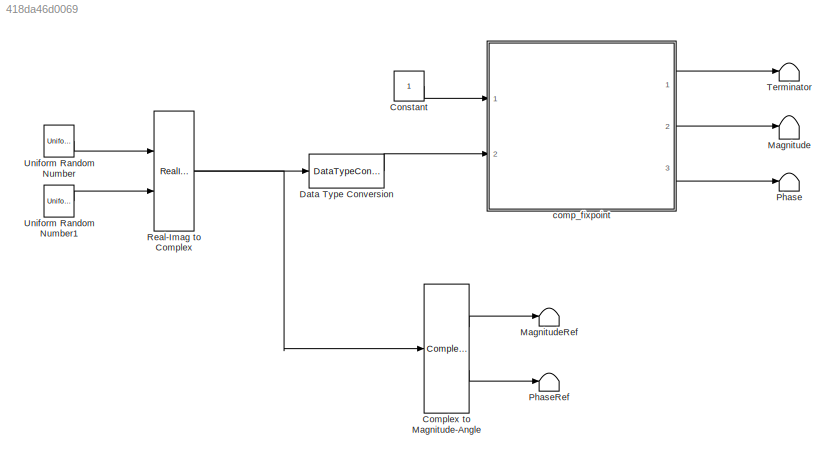
MODEL slx_418da46d0069
KIND model
CONFIG AbsTol = auto
CONFIG EnableMultiTasking = off
CONFIG FixedStep = auto
CONFIG MaxStep = auto
CONFIG MinStep = auto
CONFIG RelTol = 1e-3
CONFIG SampleTimeConstraint = Unconstrained
CONFIG SolverName = VariableStepAuto
CONFIG StartTime = 0.0
CONFIG StopTime = 10.0
BLOCK [ComplexToMagnitudeAngle] Complex to Magnitude-Angle
  Ports = [1, 2]
BLOCK [Constant] Constant
  OutDataTypeStr = boolean
  SampleTime = 1
BLOCK [DataTypeConversion] Data Type Conversion
  OutDataTypeStr = fixdt(0,32,22)
  RndMeth = Round
BLOCK [Terminator] Magnitude
BLOCK [Terminator] MagnitudeRef
BLOCK [Terminator] Phase
BLOCK [Terminator] PhaseRef
BLOCK [RealImagToComplex] Real-Imag to Complex
  Ports = [2, 1]
BLOCK [Terminator] Terminator
BLOCK [UniformRandomNumber] Uniform Random Number
  Maximum = 1023.99999976158142089844
  Minimum = 0
  SampleTime = 1
  Seed = 10
BLOCK [UniformRandomNumber] Uniform Random Number1
  Maximum = 1023.99999976158142089844
  Minimum = 0
  SampleTime = 1
  Seed = 11
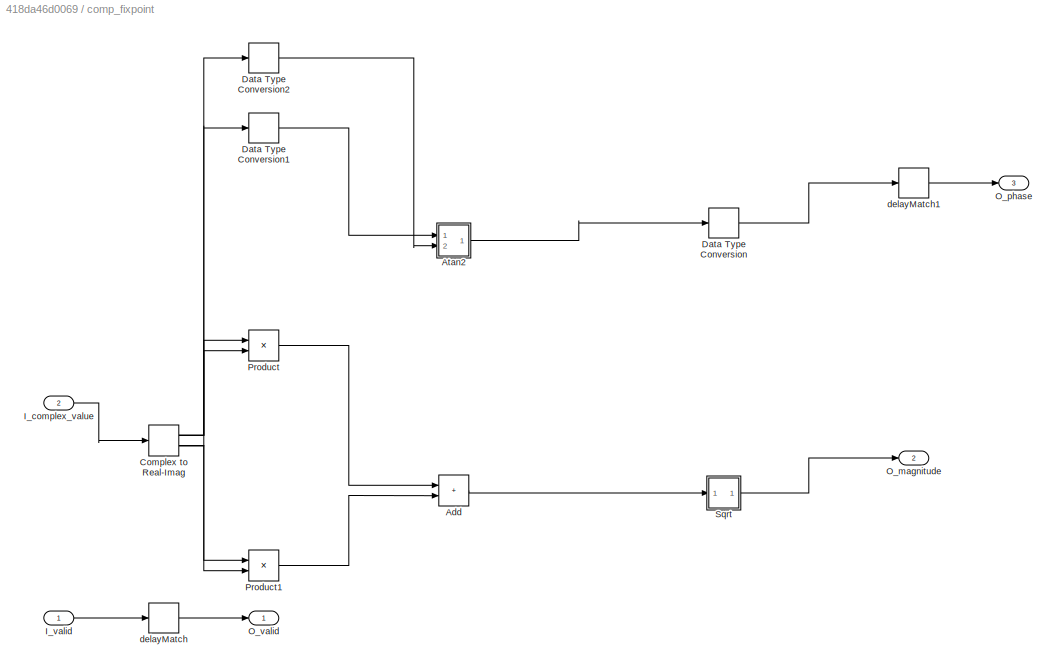
BLOCK [SubSystem] comp_fixpoint
  Ports = [2, 3]
  RequestExecContextInheritance = off
BLOCK [Sum] comp_fixpoint/Add
  AccumDataTypeStr = fixdt(0, 64, 44)
  IconShape = rectangular
  OutDataTypeStr = fixdt(0, 64, 44)
  Ports = [2, 1]
  SampleTime = 1
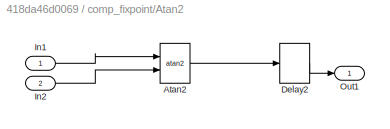
BLOCK [SubSystem] comp_fixpoint/Atan2
  Ports = [2, 1]
  RequestExecContextInheritance = off
BLOCK [Trigonometry] comp_fixpoint/Atan2/Atan2
  ApproximationMethod = CORDIC
  NumberOfIterations = 20
  Operator = atan2
  Ports = [2, 1]
BLOCK [Delay] comp_fixpoint/Atan2/Delay2
  DelayLength = 23
  InputPortMap = u0
  Ports = [1, 1]
BLOCK [Inport] comp_fixpoint/Atan2/In1
BLOCK [Inport] comp_fixpoint/Atan2/In2
  Port = 2
BLOCK [Outport] comp_fixpoint/Atan2/Out1
BLOCK [ComplexToRealImag] comp_fixpoint/Complex to Real-Imag
  Ports = [1, 2]
  SampleTime = 1
BLOCK [DataTypeConversion] comp_fixpoint/Data Type Conversion
  OutDataTypeStr = fixdt(0, 16, 13)
  RndMeth = Round
  SampleTime = 1
  SaturateOnIntegerOverflow = off
BLOCK [DataTypeConversion] comp_fixpoint/Data Type Conversion1
  OutDataTypeStr = fixdt(1, 33, 22)
  RndMeth = Floor
  SampleTime = 1
  SaturateOnIntegerOverflow = off
BLOCK [DataTypeConversion] comp_fixpoint/Data Type Conversion2
  OutDataTypeStr = fixdt(1, 33, 22)
  RndMeth = Floor
  SampleTime = 1
  SaturateOnIntegerOverflow = off
BLOCK [Inport] comp_fixpoint/I_complex_value
  OutDataTypeStr = fixdt(0, 32, 22)
  Port = 2
  PortDimensions = 1
  SampleTime = 1
  SignalType = complex
BLOCK [Inport] comp_fixpoint/I_valid
  OutDataTypeStr = boolean
  PortDimensions = 1
  SampleTime = 1
BLOCK [Outport] comp_fixpoint/O_magnitude
  Port = 2
  SampleTime = 1
BLOCK [Outport] comp_fixpoint/O_phase
  Port = 3
  SampleTime = 1
BLOCK [Outport] comp_fixpoint/O_valid
  SampleTime = 1
BLOCK [Product] comp_fixpoint/Product
  Inputs = **
  OutDataTypeStr = fixdt(0, 64, 44)
  Ports = [2, 1]
  SampleTime = 1
BLOCK [Product] comp_fixpoint/Product1
  Inputs = **
  OutDataTypeStr = fixdt(0, 64, 44)
  Ports = [2, 1]
  SampleTime = 1
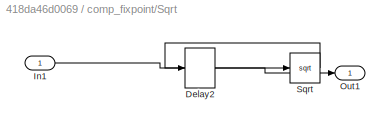
BLOCK [SubSystem] comp_fixpoint/Sqrt
  Ports = [1, 1]
  RequestExecContextInheritance = off
BLOCK [Delay] comp_fixpoint/Sqrt/Delay2
  DelayLength = 33
  InputPortMap = u0
  Ports = [1, 1]
BLOCK [Inport] comp_fixpoint/Sqrt/In1
BLOCK [Outport] comp_fixpoint/Sqrt/Out1
BLOCK [Sqrt] comp_fixpoint/Sqrt/Sqrt
  OutDataTypeStr = fixdt(0,33,21)
BLOCK [Delay] comp_fixpoint/delayMatch
  DelayLength = double(33)
  InitialCondition = 0
  InputPortMap = u0
  Ports = [1, 1]
  SampleTime = 1
BLOCK [Delay] comp_fixpoint/delayMatch1
  DelayLength = double(10)
  InitialCondition = 0
  InputPortMap = u0
  Ports = [1, 1]
  SampleTime = 1
LINE Complex to Magnitude-Angle:1 -> MagnitudeRef:1
LINE Complex to Magnitude-Angle:2 -> PhaseRef:1
LINE Constant:1 -> comp_fixpoint:1
LINE Data Type Conversion:1 -> comp_fixpoint:2
NET Real-Imag to Complex:1 -> Complex to Magnitude-Angle:1, Data Type Conversion:1
LINE Uniform Random Number1:1 -> Real-Imag to Complex:2
LINE Uniform Random Number:1 -> Real-Imag to Complex:1
LINE comp_fixpoint/Add:1 -> comp_fixpoint/Sqrt:1
LINE comp_fixpoint/Atan2/Atan2:1 -> comp_fixpoint/Atan2/Delay2:1
LINE comp_fixpoint/Atan2/Delay2:1 -> comp_fixpoint/Atan2/Out1:1
LINE comp_fixpoint/Atan2/In1:1 -> comp_fixpoint/Atan2/Atan2:1
LINE comp_fixpoint/Atan2/In2:1 -> comp_fixpoint/Atan2/Atan2:2
LINE comp_fixpoint/Atan2:1 -> comp_fixpoint/Data Type Conversion:1
NET comp_fixpoint/Complex to Real-Imag:1 -> comp_fixpoint/Data Type Conversion2:1, comp_fixpoint/Product:1, comp_fixpoint/Product:2
NET comp_fixpoint/Complex to Real-Imag:2 -> comp_fixpoint/Data Type Conversion1:1, comp_fixpoint/Product1:1, comp_fixpoint/Product1:2
LINE comp_fixpoint/Data Type Conversion1:1 -> comp_fixpoint/Atan2:1
LINE comp_fixpoint/Data Type Conversion2:1 -> comp_fixpoint/Atan2:2
LINE comp_fixpoint/Data Type Conversion:1 -> comp_fixpoint/delayMatch1:1
LINE comp_fixpoint/I_complex_value:1 -> comp_fixpoint/Complex to Real-Imag:1
LINE comp_fixpoint/I_valid:1 -> comp_fixpoint/delayMatch:1
LINE comp_fixpoint/Product1:1 -> comp_fixpoint/Add:2
LINE comp_fixpoint/Product:1 -> comp_fixpoint/Add:1
LINE comp_fixpoint/Sqrt/Delay2:1 -> comp_fixpoint/Sqrt/Out1:1
LINE comp_fixpoint/Sqrt/In1:1 -> comp_fixpoint/Sqrt/Sqrt:1
LINE comp_fixpoint/Sqrt/Sqrt:1 -> comp_fixpoint/Sqrt/Delay2:1
LINE comp_fixpoint/Sqrt:1 -> comp_fixpoint/O_magnitude:1
LINE comp_fixpoint/delayMatch1:1 -> comp_fixpoint/O_phase:1
LINE comp_fixpoint/delayMatch:1 -> comp_fixpoint/O_valid:1
LINE comp_fixpoint:1 -> Terminator:1
LINE comp_fixpoint:2 -> Magnitude:1
LINE comp_fixpoint:3 -> Phase:1
note: NET lines group one-source signal fan-out (src -> all destinations, sorted); 1:1 wires keep LINE
